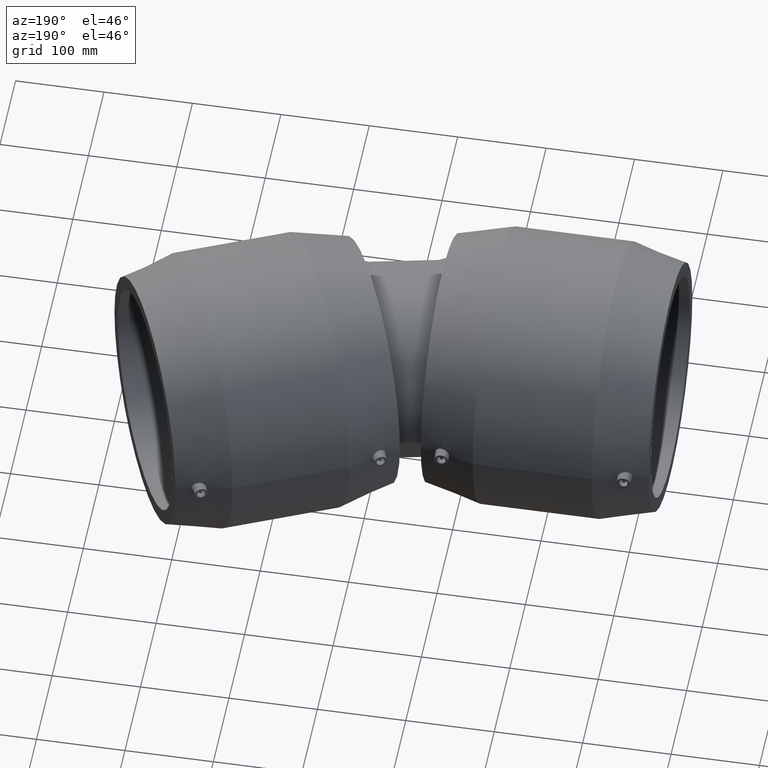
[diagram: clean part render]
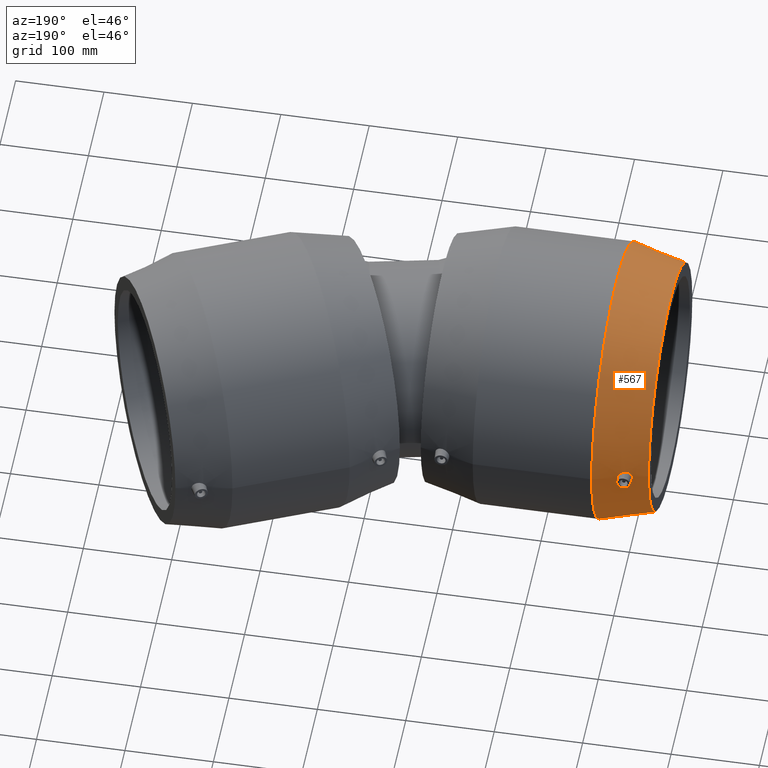
[diagram: same view with one face highlighted and labeled with its STEP entity id]
A machine part, auxiliary view. The second image highlights one B-rep face of the part: STEP entity #567.
In plain terms, the highlighted conical surface has half-angle 14.233 deg.
Its self-contained STEP definition (entity closure, byte-faithful):
#19=CONICAL_SURFACE('',#646,148.2,14.2333611977247);
#88=FACE_BOUND('',#215,.T.);
#89=FACE_BOUND('',#216,.T.);
#139=FACE_OUTER_BOUND('',#214,.T.);
#214=EDGE_LOOP('',(#487));
#215=EDGE_LOOP('',(#488));
#216=EDGE_LOOP('',(#489));
#268=B_SPLINE_CURVE_WITH_KNOTS('',3,(#1189,#1190,#1191,#1192,#1193,#1194,
#1195,#1196,#1197,#1198,#1199,#1200,#1201,#1202,#1203,#1204,#1205,#1206,
#1207,#1208,#1209,#1210,#1211,#1212,#1213,#1214,#1215,#1216,#1217,#1218,
#1219,#1220,#1221,#1222),.UNSPECIFIED.,.T.,.F.,(4,2,2,2,2,2,2,2,2,2,2,2,
2,2,2,2,4),(0.,0.316797496741356,0.633594993482712,0.944618253262423,1.25564151304213,
1.56666477282184,1.87768803260155,2.19448552934291,2.51128302608427,2.83870576624203,
3.16612850639979,3.48263606049424,3.7991436145887,4.11565116868316,4.43215872277762,
4.75958146293538,5.08700420309314),.UNSPECIFIED.);
#290=CIRCLE('',#630,156.);
#297=CIRCLE('',#645,140.4);
#339=VERTEX_POINT('',#1188);
#341=VERTEX_POINT('',#1226);
#348=VERTEX_POINT('',#1248);
#394=EDGE_CURVE('',#339,#339,#268,.T.);
#396=EDGE_CURVE('',#341,#341,#290,.T.);
#403=EDGE_CURVE('',#348,#348,#297,.T.);
#487=ORIENTED_EDGE('',*,*,#396,.F.);
#488=ORIENTED_EDGE('',*,*,#394,.T.);
#489=ORIENTED_EDGE('',*,*,#403,.T.);
#567=ADVANCED_FACE('',(#139,#88,#89),#19,.T.);
#630=AXIS2_PLACEMENT_3D('',#1227,#767,#768);
#645=AXIS2_PLACEMENT_3D('',#1249,#797,#798);
#646=AXIS2_PLACEMENT_3D('',#1250,#799,#800);
#767=DIRECTION('center_axis',(1.,1.83697019872103E-16,0.));
#768=DIRECTION('ref_axis',(0.,0.,-1.));
#797=DIRECTION('center_axis',(1.,1.83697019872103E-16,0.));
#798=DIRECTION('ref_axis',(0.,0.,-1.));
#799=DIRECTION('center_axis',(1.,1.83697019872103E-16,0.));
#800=DIRECTION('ref_axis',(-1.81044448193185E-16,1.,0.));
#1188=CARTESIAN_POINT('',(-103.343773652684,146.621606536394,8.31495601756075));
#1189=CARTESIAN_POINT('Ctrl Pts',(-103.343773652684,146.621606536394,8.31495601756076));
#1190=CARTESIAN_POINT('Ctrl Pts',(-104.367348848576,146.362384452232,8.30025545412058));
#1191=CARTESIAN_POINT('Ctrl Pts',(-105.462405892568,146.096948268741,8.08296581887805));
#1192=CARTESIAN_POINT('Ctrl Pts',(-107.48285234619,145.628933347258,7.22151403549736));
#1193=CARTESIAN_POINT('Ctrl Pts',(-108.408000317407,145.425826093075,6.57707287458326));
#1194=CARTESIAN_POINT('Ctrl Pts',(-109.857771646658,145.117086489826,5.09978268326539));
#1195=CARTESIAN_POINT('Ctrl Pts',(-110.484127879172,144.989468823429,4.17337566474383));
#1196=CARTESIAN_POINT('Ctrl Pts',(-111.31597655778,144.822681691367,2.14185004710763));
#1197=CARTESIAN_POINT('Ctrl Pts',(-111.52137157221,144.782871601196,1.0367441992657));
#1198=CARTESIAN_POINT('Ctrl Pts',(-111.52137157221,144.782871601196,-1.0367441992657));
#1199=CARTESIAN_POINT('Ctrl Pts',(-111.31597655778,144.822681691367,-2.14185004710763));
#1200=CARTESIAN_POINT('Ctrl Pts',(-110.484127879172,144.989468823429,-4.17337566474383));
#1201=CARTESIAN_POINT('Ctrl Pts',(-109.857771646658,145.117086489826,-5.09978268326538));
#1202=CARTESIAN_POINT('Ctrl Pts',(-108.408000317407,145.425826093075,-6.57707287458326));
#1203=CARTESIAN_POINT('Ctrl Pts',(-107.48285234619,145.628933347258,-7.22151403549736));
#1204=CARTESIAN_POINT('Ctrl Pts',(-105.462405892568,146.096948268741,-8.08296581887806));
#1205=CARTESIAN_POINT('Ctrl Pts',(-104.367348848576,146.362384452232,-8.30025545412058));
#1206=CARTESIAN_POINT('Ctrl Pts',(-102.285868212003,146.889522810919,-8.33014963118764));
#1207=CARTESIAN_POINT('Ctrl Pts',(-101.156594864979,147.188181445629,-8.13161273974483));
#1208=CARTESIAN_POINT('Ctrl Pts',(-99.0737048707267,147.761359346574,-7.28778730268962));
#1209=CARTESIAN_POINT('Ctrl Pts',(-98.1199335772166,148.035277233903,-6.64247210543459));
#1210=CARTESIAN_POINT('Ctrl Pts',(-96.6337183099002,148.471568084187,-5.15653982628526));
#1211=CARTESIAN_POINT('Ctrl Pts',(-95.9932218138503,148.665203317843,-4.22654532561806));
#1212=CARTESIAN_POINT('Ctrl Pts',(-95.1396590598351,148.925885004145,-2.17589767399939));
#1213=CARTESIAN_POINT('Ctrl Pts',(-94.9268970935974,148.992201712844,-1.05502518031486));
#1214=CARTESIAN_POINT('Ctrl Pts',(-94.9268970935974,148.992201712844,1.05502518031486));
#1215=CARTESIAN_POINT('Ctrl Pts',(-95.1396590598351,148.925885004145,2.17589767399939));
#1216=CARTESIAN_POINT('Ctrl Pts',(-95.9932218138503,148.665203317843,4.22654532561806));
#1217=CARTESIAN_POINT('Ctrl Pts',(-96.6337183099002,148.471568084187,5.15653982628526));
#1218=CARTESIAN_POINT('Ctrl Pts',(-98.1199335772166,148.035277233903,6.64247210543459));
#1219=CARTESIAN_POINT('Ctrl Pts',(-99.0737048707267,147.761359346574,7.28778730268962));
#1220=CARTESIAN_POINT('Ctrl Pts',(-101.156594864979,147.188181445629,8.13161273974483));
#1221=CARTESIAN_POINT('Ctrl Pts',(-102.285868212003,146.889522810919,8.33014963118764));
#1222=CARTESIAN_POINT('Ctrl Pts',(-103.343773652684,146.621606536394,8.31495601756076));
#1226=CARTESIAN_POINT('',(-67.3,156.,0.));
#1227=CARTESIAN_POINT('Origin',(-67.3,1.12973667221343E-14,0.));
#1248=CARTESIAN_POINT('',(-128.8,140.4,0.));
#1249=CARTESIAN_POINT('Origin',(-128.8,2.95822839457879E-30,0.));
#1250=CARTESIAN_POINT('Origin',(-98.05,5.64868336106717E-15,0.));